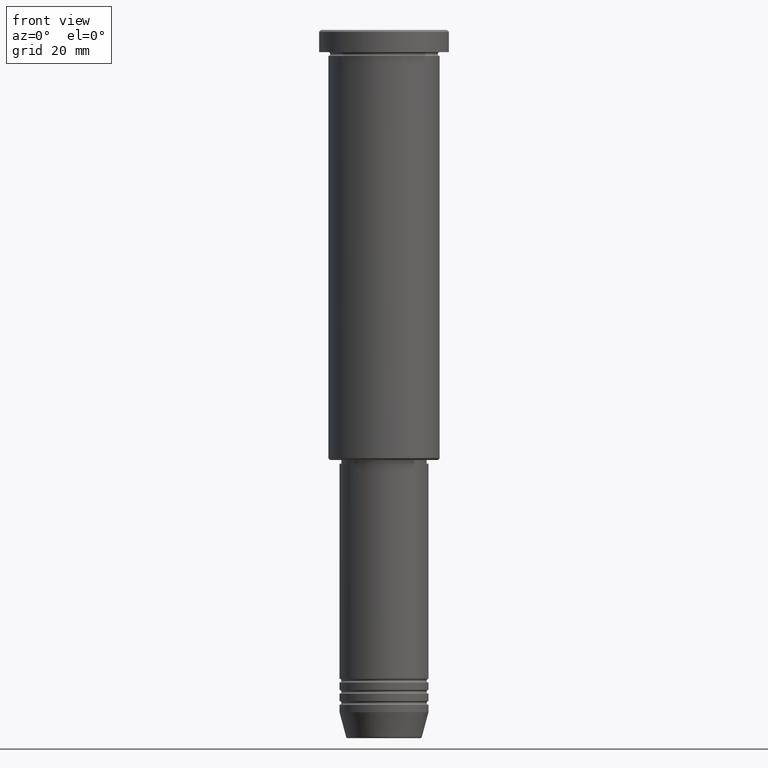
[diagram: clean part render]
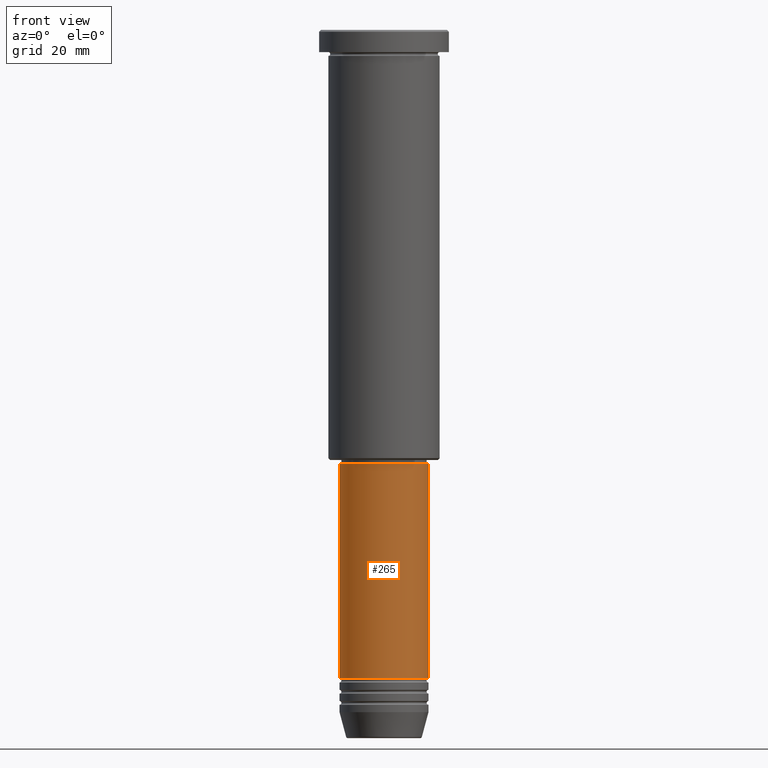
[diagram: same view with one face highlighted and labeled with its STEP entity id]
A machine part, front view. The second image highlights one B-rep face of the part: STEP entity #265.
In plain terms, the highlighted cylindrical surface (partial cylindrical patch) has radius 12 mm, axis along (-0, -0, 1).
Its self-contained STEP definition (entity closure, byte-faithful):
#7 = DIRECTION ( 'NONE',  ( 1.000000000000000000, 0.000000000000000000, 0.000000000000000000 ) ) ;
#27 = VERTEX_POINT ( 'NONE', #682 ) ;
#35 = VECTOR ( 'NONE', #469, 1000.000000000000000 ) ;
#37 = CIRCLE ( 'NONE', #295, 12.00000000000000000 ) ;
#87 = CARTESIAN_POINT ( 'NONE',  ( -12.00000000000000000, 1.469576158976823947E-15, -117.0000000000000142 ) ) ;
#149 = EDGE_CURVE ( 'NONE', #662, #456, #571, .T. ) ;
#154 = AXIS2_PLACEMENT_3D ( 'NONE', #795, #274, #187 ) ;
#187 = DIRECTION ( 'NONE',  ( 1.000000000000000000, 0.000000000000000000, 0.000000000000000000 ) ) ;
#206 = AXIS2_PLACEMENT_3D ( 'NONE', #410, #1043, #757 ) ;
#265 = ADVANCED_FACE ( 'NONE', ( #1074 ), #984, .T. ) ;
#274 = DIRECTION ( 'NONE',  ( -0.000000000000000000, -0.000000000000000000, 1.000000000000000000 ) ) ;
#295 = AXIS2_PLACEMENT_3D ( 'NONE', #1002, #1114, #7 ) ;
#330 = ORIENTED_EDGE ( 'NONE', *, *, #149, .F. ) ;
#373 = EDGE_CURVE ( 'NONE', #456, #27, #37, .T. ) ;
#393 = ORIENTED_EDGE ( 'NONE', *, *, #489, .T. ) ;
#410 = CARTESIAN_POINT ( 'NONE',  ( 0.000000000000000000, 0.000000000000000000, -175.0000000000000000 ) ) ;
#456 = VERTEX_POINT ( 'NONE', #87 ) ;
#469 = DIRECTION ( 'NONE',  ( -0.000000000000000000, -0.000000000000000000, 1.000000000000000000 ) ) ;
#489 = EDGE_CURVE ( 'NONE', #1141, #27, #594, .T. ) ;
#498 = DIRECTION ( 'NONE',  ( -0.000000000000000000, -0.000000000000000000, 1.000000000000000000 ) ) ;
#566 = CARTESIAN_POINT ( 'NONE',  ( 12.00000000000000000, 0.000000000000000000, -175.0000000000000000 ) ) ;
#571 = LINE ( 'NONE', #939, #35 ) ;
#594 = LINE ( 'NONE', #612, #1108 ) ;
#612 = CARTESIAN_POINT ( 'NONE',  ( 12.00000000000000000, 0.000000000000000000, 0.000000000000000000 ) ) ;
#653 = CIRCLE ( 'NONE', #206, 12.00000000000000000 ) ;
#662 = VERTEX_POINT ( 'NONE', #696 ) ;
#682 = CARTESIAN_POINT ( 'NONE',  ( 12.00000000000000000, 0.000000000000000000, -117.0000000000000142 ) ) ;
#683 = EDGE_LOOP ( 'NONE', ( #330, #694, #393, #753 ) ) ;
#694 = ORIENTED_EDGE ( 'NONE', *, *, #852, .T. ) ;
#696 = CARTESIAN_POINT ( 'NONE',  ( -12.00000000000000000, 1.469576158976823947E-15, -175.0000000000000000 ) ) ;
#753 = ORIENTED_EDGE ( 'NONE', *, *, #373, .F. ) ;
#757 = DIRECTION ( 'NONE',  ( 1.000000000000000000, 0.000000000000000000, 0.000000000000000000 ) ) ;
#795 = CARTESIAN_POINT ( 'NONE',  ( 0.000000000000000000, 0.000000000000000000, 0.000000000000000000 ) ) ;
#852 = EDGE_CURVE ( 'NONE', #662, #1141, #653, .T. ) ;
#939 = CARTESIAN_POINT ( 'NONE',  ( -12.00000000000000000, 1.469576158976823947E-15, 0.000000000000000000 ) ) ;
#984 = CYLINDRICAL_SURFACE ( 'NONE', #154, 12.00000000000000000 ) ;
#1002 = CARTESIAN_POINT ( 'NONE',  ( 0.000000000000000000, 0.000000000000000000, -117.0000000000000142 ) ) ;
#1043 = DIRECTION ( 'NONE',  ( -0.000000000000000000, -0.000000000000000000, 1.000000000000000000 ) ) ;
#1074 = FACE_OUTER_BOUND ( 'NONE', #683, .T. ) ;
#1108 = VECTOR ( 'NONE', #498, 1000.000000000000000 ) ;
#1114 = DIRECTION ( 'NONE',  ( -0.000000000000000000, -0.000000000000000000, 1.000000000000000000 ) ) ;
#1141 = VERTEX_POINT ( 'NONE', #566 ) ;